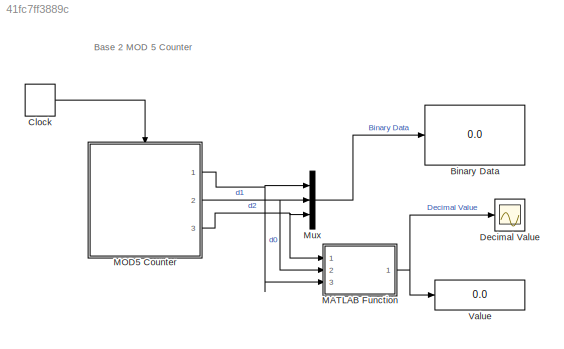
MODEL slx_41fc7ff3889c
KIND model
CONFIG AbsTol = auto
CONFIG EnableMultiTasking = off
CONFIG FixedStep = auto
CONFIG MaxStep = auto
CONFIG MinStep = auto
CONFIG RelTol = 1e-3
CONFIG SampleTimeConstraint = Unconstrained
CONFIG SolverName = VariableStepAuto
CONFIG StartTime = 0.0
CONFIG StopTime = inf
BLOCK [Display] Binary Data
  Decimation = 1
  Ports = [1]
BLOCK [DiscretePulseGenerator] Clock
  Period = 0.5
  Ports = [0, 1]
  PulseType = Time based
  PulseWidth = 5
BLOCK [Scope] Decimal Value
  Floating = off
  NumInputPorts = 1
  Ports = [1]
  ScopeSpecificationString = Simulink.scopes.TimeScopeBlockCfg('CurrentConfiguration', extmgr.ConfigurationSet(extmgr.Configuration('Core','General UI',true),extmgr.Configuration('Core','Source UI',true),extmgr.Configuration('Sources','WiredSimulink',true),extmgr.Configuration('Visuals','Time Domain',true,'SerializedDisplays',{struct('MinYLimReal','-0.5','MaxYLimReal','4.5','YLabelReal','','MinYLimMag','0.00000','MaxYLimMag',...<+1331ch>
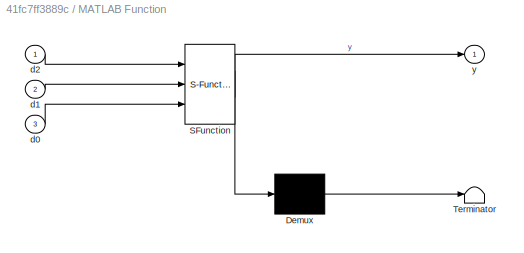
BLOCK [SubSystem] MATLAB Function
  ErrorFcn = Stateflow.Translate.translate
  PermitHierarchicalResolution = ExplicitOnly
  Ports = [3, 1]
  RequestExecContextInheritance = off
  SFBlockType = MATLAB Function
  TreatAsAtomicUnit = on
BLOCK [Demux] MATLAB Function/ Demux 
  Outputs = 1
  Ports = [1, 1]
BLOCK [S-Function] MATLAB Function/ SFunction 
  EnableBusSupport = on
  FunctionName = sf_sfun
  PortCounts = [3 2]
  Ports = [3, 2]
  SFcnIsStateOwnerBlock = off
  SFunctionDeploymentMode = off
  Tag = Stateflow S-Function 2
BLOCK [Terminator] MATLAB Function/ Terminator 
BLOCK [Inport] MATLAB Function/d0
  Port = 3
BLOCK [Inport] MATLAB Function/d1
  Port = 2
BLOCK [Inport] MATLAB Function/d2
BLOCK [Outport] MATLAB Function/y
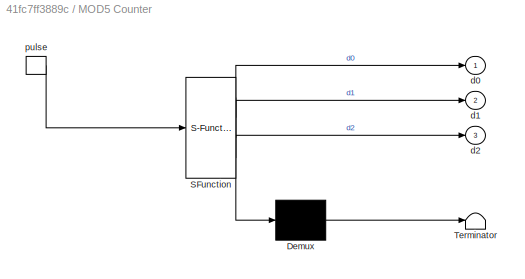
BLOCK [SubSystem] MOD5 Counter
  ErrorFcn = Stateflow.Translate.translate
  PermitHierarchicalResolution = ExplicitOnly
  Ports = [0, 3, 0, 1]
  RequestExecContextInheritance = off
  SFBlockType = Chart
  TreatAsAtomicUnit = on
BLOCK [Demux] MOD5 Counter/ Demux 
  Outputs = 1
  Ports = [1, 1]
BLOCK [S-Function] MOD5 Counter/ SFunction 
  EnableBusSupport = on
  FunctionName = sf_sfun
  PortCounts = [1 4]
  Ports = [1, 4]
  SFcnIsStateOwnerBlock = off
  SFunctionDeploymentMode = off
  Tag = Stateflow S-Function 3
BLOCK [Terminator] MOD5 Counter/ Terminator 
BLOCK [Outport] MOD5 Counter/d0
BLOCK [Outport] MOD5 Counter/d1
  Port = 2
BLOCK [Outport] MOD5 Counter/d2
  Port = 3
BLOCK [TriggerPort] MOD5 Counter/pulse
  Ports = [0, 1]
  ShowOutputPort = on
  StatesWhenEnabling = held
  VariantControl = (inherit)
BLOCK [Mux] Mux
  DisplayOption = bar
  Inputs = 3
  Ports = [3, 1]
BLOCK [Display] Value
  Decimation = 1
  Ports = [1]
ANNOTATION (root): Base 2 MOD 5 Counter
LINE Clock:1 -> MOD5 Counter:trigger
NET MATLAB Function:1 -> Decimal Value:1, Value:1
NET MOD5 Counter:1 -> MATLAB Function:3, Mux:1
NET MOD5 Counter:2 -> MATLAB Function:2, Mux:2
NET MOD5 Counter:3 -> MATLAB Function:1, Mux:3
LINE Mux:1 -> Binary Data:1
note: NET lines group one-source signal fan-out (src -> all destinations, sorted); 1:1 wires keep LINE
CHART MATLAB Function states=1 transitions=1
  STATE_LABEL 'eML_blk_kernel()'
  STATE_LABEL 'SCRIPT:\nfunction y= fcn(d2,d1,d0)\nif(d2==0 && d1==0 && d0==0)\n    y=0;\nelseif(d2==0 && d1==0 && d0==1)\n    y=1;\nelseif(d2==0 && d1==1 && d0==0)\n    y=2;\nelseif(d2==0 && d1==1 && d0==1)\n    y=3;\nelseif(d2==1 && d1==0 && d0==0)\n    y=4;\nelse\n    y=0;\n    \nend\n'
CHART MOD5 Counter states=10 transitions=9
  STATE_LABEL 'digit0\n'
  STATE_LABEL 'zero\nen:\nd0=0;\n'
  STATE_LABEL 'one\nen:\nd0=1\n'
  STATE_LABEL 'pulse{send(inc1);}'
  STATE_LABEL '[r==0]'
  STATE_LABEL 'zero\nen:\nd0=0;\n'
  STATE_LABEL 'one\nen:\nd0=1\n'
  STATE_LABEL '<!DOCTYPE HTML PUBLIC "-//W3C//DTD HTML 4.0//EN" "http://www.w3.org/TR/REC-html40/strict.dtd">\n<html><head><meta name="qrichtext" content="1" /><style type="text/css">\np, li { white-space: pre-wrap; }\n</style></head><body align="left" style=" font-family:\'Helvetica\'; font-size:12px; font-weight:400; font-style:normal;">\n<p align="left" style=" margin-top:0px; margin-bottom:0px; margin-left:0px; ma...<+1559ch>'
  STATE_LABEL 'digit1\n'
  STATE_LABEL 'zero\nen:\nd1=0;\n'
  STATE_LABEL 'one\nen:\nd1=1;\n'
  STATE_LABEL 'inc1{send(inc2);}'
  STATE_LABEL 'inc1'
  STATE_LABEL 'zero\nen:\nd1=0;\n'
  STATE_LABEL 'one\nen:\nd1=1;\n'
  STATE_LABEL 'digit2\n'
  STATE_LABEL 'zero\nen:\nd2=0;\ndu:\nr=0;\n'
  STATE_LABEL 'one\nen:\nd2=1;\nr=1;\n'
  STATE_LABEL 'inc2'
  STATE_LABEL 'zero\nen:\nd2=0;\ndu:\nr=0;\n'
  STATE_LABEL 'one\nen:\nd2=1;\nr=1;\n'
CHART  states=0 transitions=0
CHART  states=0 transitions=0
